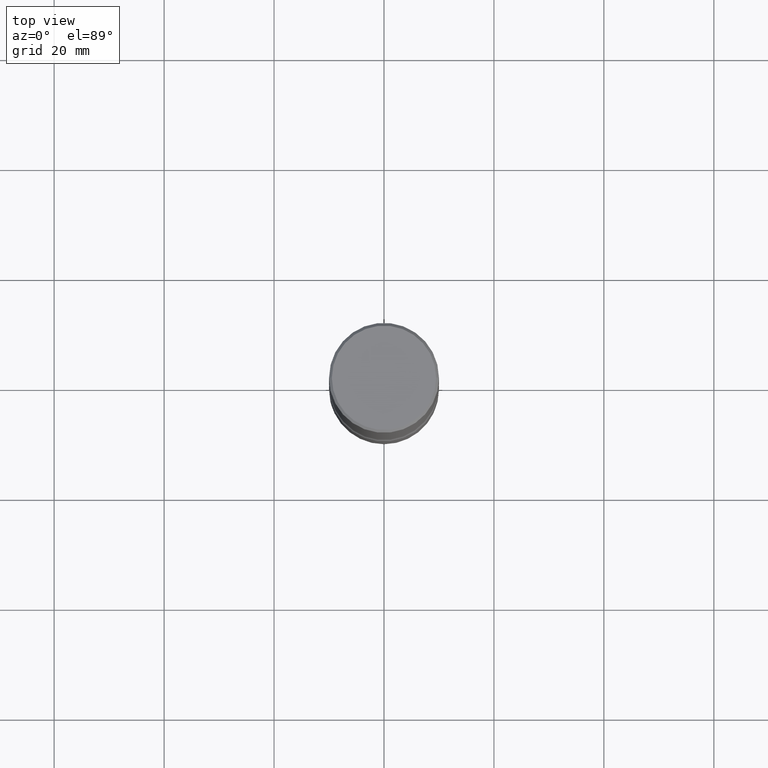
[diagram: clean part render]
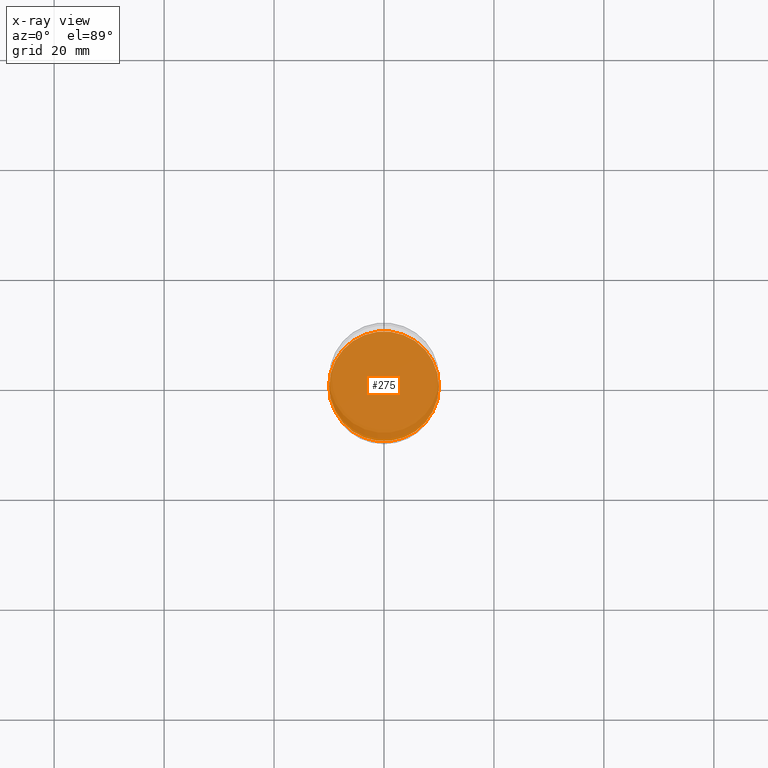
[diagram: x-ray — body ghosted, one internal face saturated and labeled with its STEP entity id]
A machine part, top view, then the same camera in x-ray: the body is ghosted and one INTERNAL B-rep face — a face not visible from any outside direction — is saturated and labeled: STEP entity #275.
In plain terms, the highlighted planar face has unit normal (0, -0, -1).
Its self-contained STEP definition (entity closure, byte-faithful):
#1 = CARTESIAN_POINT ( 'NONE',  ( 8.665029620955795190E-29, -1.237136582792291865E-14, -3.543300000000000338 ) ) ;
#2 = EDGE_CURVE ( 'NONE', #97, #558, #458, .T. ) ;
#28 = ORIENTED_EDGE ( 'NONE', *, *, #2, .T. ) ;
#31 = AXIS2_PLACEMENT_3D ( 'NONE', #76, #525, #206 ) ;
#49 = FACE_OUTER_BOUND ( 'NONE', #243, .T. ) ;
#76 = CARTESIAN_POINT ( 'NONE',  ( 8.665029620955795190E-29, -1.237136582792291865E-14, -3.543300000000000338 ) ) ;
#79 = DIRECTION ( 'NONE',  ( 2.438088387897960049E-29, -3.491481338843145188E-15, -1.000000000000000000 ) ) ;
#97 = VERTEX_POINT ( 'NONE', #425 ) ;
#122 = DIRECTION ( 'NONE',  ( 2.445468806185136597E-29, -3.491481338843145583E-15, -1.000000000000000000 ) ) ;
#127 = CIRCLE ( 'NONE', #369, 0.3931999999999993833 ) ;
#175 = CARTESIAN_POINT ( 'NONE',  ( 2.745700924866322251E-15, 0.3931999999999870044, -3.543300000000002115 ) ) ;
#199 = ORIENTED_EDGE ( 'NONE', *, *, #305, .T. ) ;
#206 = DIRECTION ( 'NONE',  ( -1.000000000000000000, 6.982962677686265922E-15, 0.000000000000000000 ) ) ;
#243 = EDGE_LOOP ( 'NONE', ( #28, #199 ) ) ;
#245 = CARTESIAN_POINT ( 'NONE',  ( -0.3931999999999993833, -9.575657891483255189E-15, -3.543300000000000338 ) ) ;
#246 = AXIS2_PLACEMENT_3D ( 'NONE', #175, #79, #490 ) ;
#275 = ADVANCED_FACE ( 'NONE', ( #49 ), #347, .T. ) ;
#297 = DIRECTION ( 'NONE',  ( -1.000000000000000000, 6.982962677686265922E-15, 0.000000000000000000 ) ) ;
#305 = EDGE_CURVE ( 'NONE', #558, #97, #127, .T. ) ;
#347 = PLANE ( 'NONE',  #246 ) ;
#369 = AXIS2_PLACEMENT_3D ( 'NONE', #1, #122, #297 ) ;
#425 = CARTESIAN_POINT ( 'NONE',  ( 0.3931999999999993833, -1.511767757764880756E-14, -3.543300000000000338 ) ) ;
#458 = CIRCLE ( 'NONE', #31, 0.3931999999999993833 ) ;
#490 = DIRECTION ( 'NONE',  ( -1.000000000000000000, 6.982962677686265922E-15, -4.876176775795935793E-29 ) ) ;
#525 = DIRECTION ( 'NONE',  ( 2.445468806185136597E-29, -3.491481338843145583E-15, -1.000000000000000000 ) ) ;
#558 = VERTEX_POINT ( 'NONE', #245 ) ;